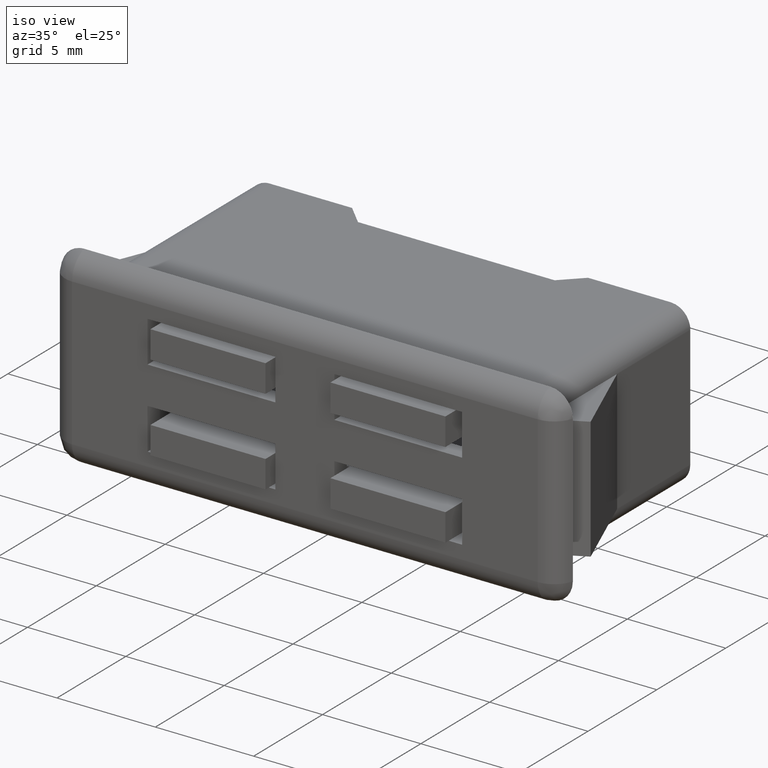
[diagram: clean part render]
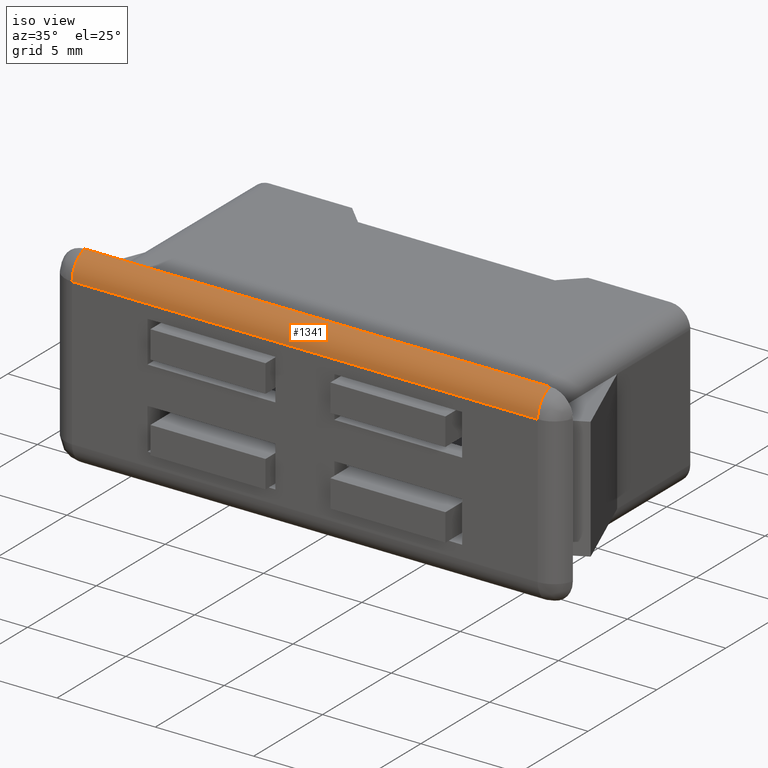
[diagram: same view with one face highlighted and labeled with its STEP entity id]
A machine part, iso view. The second image highlights one B-rep face of the part: STEP entity #1341.
In plain terms, the highlighted face is a freeform B-spline surface patch.
Its self-contained STEP definition (entity closure, byte-faithful):
#1034=CARTESIAN_POINT('',(11.838104737939339,-11.099990999999999,4.900001000000001));
#1035=VERTEX_POINT('',#1034);
#1051=CARTESIAN_POINT('',(11.838104737939339,-11.999992000000001,3.738105737939380));
#1052=VERTEX_POINT('',#1051);
#1053=CARTESIAN_POINT('',(11.838104737939339,-11.999992000000001,3.738105737939380));
#1054=CARTESIAN_POINT('',(11.838104737939338,-11.999992000000001,4.667622567265783));
#1055=CARTESIAN_POINT('',(11.838104737939339,-11.099991000000010,4.900001000000033));
#1063=(BOUNDED_CURVE()B_SPLINE_CURVE(2,(#1053,#1054,#1055),.UNSPECIFIED.,.F.,.U.)CURVE()GEOMETRIC_REPRESENTATION_ITEM()QUASI_UNIFORM_CURVE()RATIONAL_B_SPLINE_CURVE((1.0,0.790569151518915,1.0))REPRESENTATION_ITEM(''));
#1064=EDGE_CURVE('',#1052,#1035,#1063,.T.);
#1106=CARTESIAN_POINT('',(-11.838108737939359,-11.999992000000001,3.738105737939380));
#1107=VERTEX_POINT('',#1106);
#1123=CARTESIAN_POINT('',(-11.838108737939359,-11.099990999999999,4.900001000000001));
#1124=VERTEX_POINT('',#1123);
#1125=CARTESIAN_POINT('',(-11.838108737939359,-11.099991000000010,4.900001000000033));
#1126=CARTESIAN_POINT('',(-11.838108737939359,-11.999991999999999,4.667622567265784));
#1127=CARTESIAN_POINT('',(-11.838108737939359,-11.999992000000001,3.738105737939380));
#1135=(BOUNDED_CURVE()B_SPLINE_CURVE(2,(#1125,#1126,#1127),.UNSPECIFIED.,.F.,.U.)CURVE()GEOMETRIC_REPRESENTATION_ITEM()QUASI_UNIFORM_CURVE()RATIONAL_B_SPLINE_CURVE((1.0,0.790569151518915,1.0))REPRESENTATION_ITEM(''));
#1136=EDGE_CURVE('',#1124,#1107,#1135,.T.);
#1313=CARTESIAN_POINT('',(12.430010074836311,-11.049024307912569,4.911980905755676));
#1314=CARTESIAN_POINT('',(-12.444811708258751,-11.049024307912569,4.911980905755676));
#1315=CARTESIAN_POINT('',(12.430010074836309,-12.051608415889655,4.699287221511155));
#1316=CARTESIAN_POINT('',(-12.444811708258754,-12.051608415889655,4.699287221511155));
#1317=CARTESIAN_POINT('',(12.430010074836311,-11.998372052432350,3.675773964883986));
#1318=CARTESIAN_POINT('',(-12.444811708258751,-11.998372052432350,3.675773964883986));
#1326=(BOUNDED_SURFACE()B_SPLINE_SURFACE(1,2,((#1313,#1315,#1317),(#1314,#1316,#1318)),.UNSPECIFIED.,.F.,.F.,.U.)B_SPLINE_SURFACE_WITH_KNOTS((2,2),(3,3),(0.0,24.874821783095069),(0.0,1.0),.UNSPECIFIED.)GEOMETRIC_REPRESENTATION_ITEM()RATIONAL_B_SPLINE_SURFACE(((1.0,0.760405965600031,1.0),(1.0,0.760405965600031,1.0)))REPRESENTATION_ITEM('')SURFACE());
#1327=CARTESIAN_POINT('',(11.838104737939339,-11.099990999999999,4.900001000000001));
#1328=CARTESIAN_POINT('',(-11.838108737939359,-11.099990999999999,4.900001000000001));
#1329=QUASI_UNIFORM_CURVE('',1,(#1327,#1328),.UNSPECIFIED.,.F.,.U.);
#1330=EDGE_CURVE('',#1035,#1124,#1329,.T.);
#1331=ORIENTED_EDGE('',*,*,#1330,.T.);
#1332=ORIENTED_EDGE('',*,*,#1136,.T.);
#1333=CARTESIAN_POINT('',(11.838104737939339,-11.999992000000001,3.738105737939380));
#1334=CARTESIAN_POINT('',(-11.838108737939359,-11.999992000000001,3.738105737939380));
#1335=QUASI_UNIFORM_CURVE('',1,(#1333,#1334),.UNSPECIFIED.,.F.,.U.);
#1336=EDGE_CURVE('',#1052,#1107,#1335,.T.);
#1337=ORIENTED_EDGE('',*,*,#1336,.F.);
#1338=ORIENTED_EDGE('',*,*,#1064,.T.);
#1339=EDGE_LOOP('',(#1331,#1332,#1337,#1338));
#1340=FACE_OUTER_BOUND('',#1339,.T.);
#1341=ADVANCED_FACE('',(#1340),#1326,.T.);